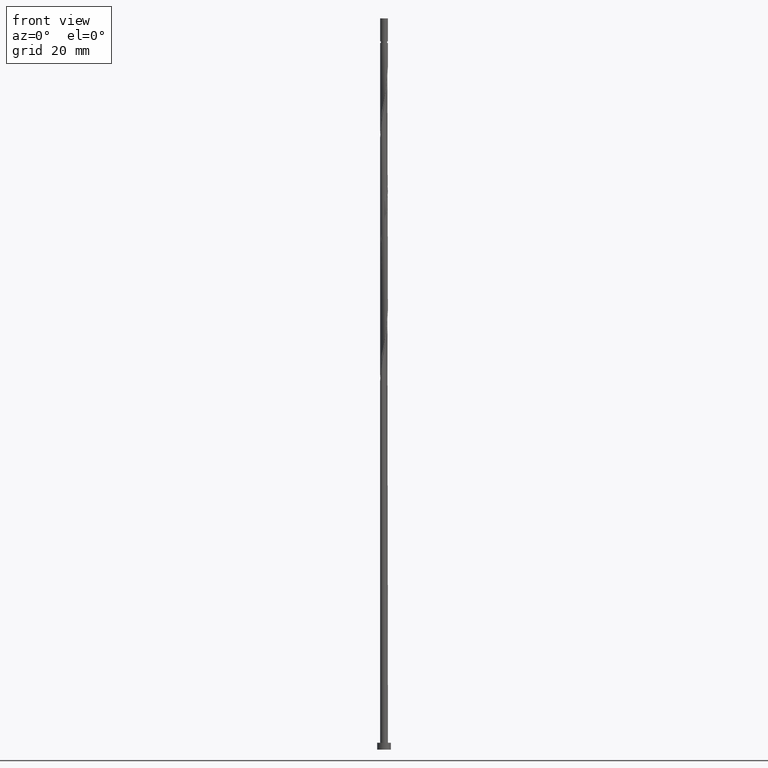
[diagram: clean part render]
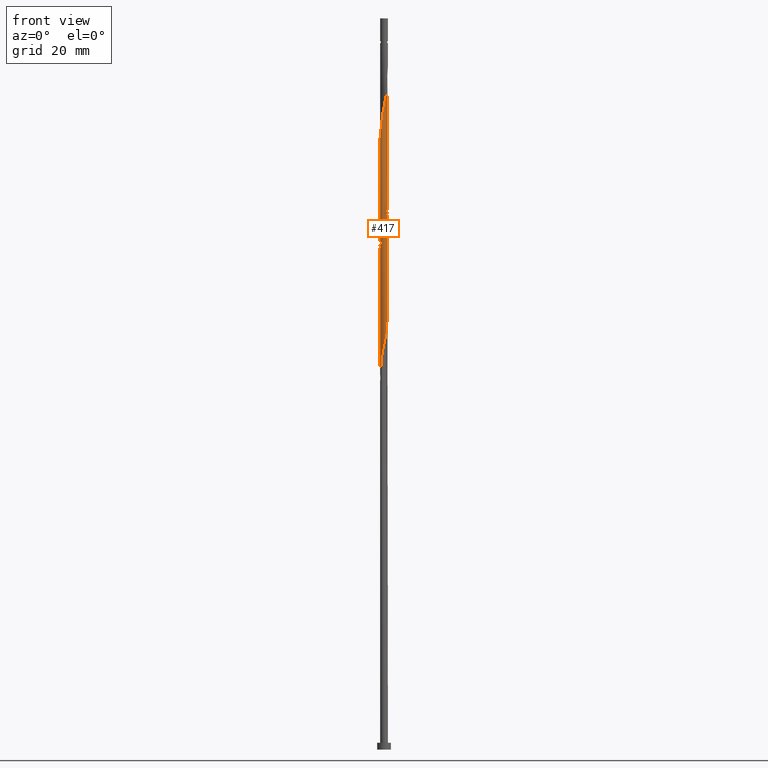
[diagram: same view with one face highlighted and labeled with its STEP entity id]
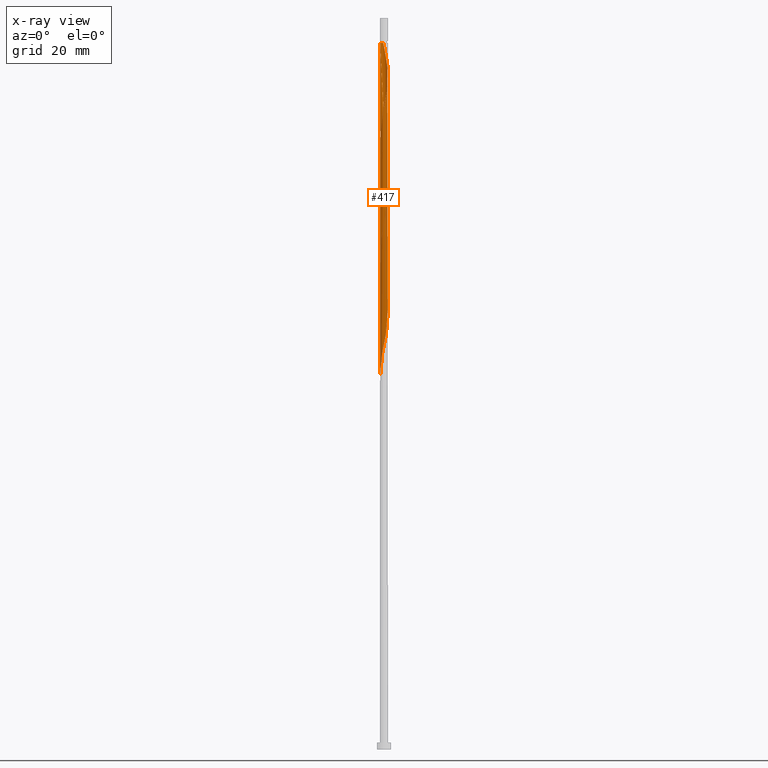
[diagram: x-ray of the same camera — body ghosted, the highlighted face saturated]
A machine part, front view. The second image highlights one B-rep face of the part: STEP entity #417.
The next image is the same camera in x-ray: the body ghosted, the highlighted face saturated — about 0% of this face is hidden behind the body in this view.
In plain terms, the highlighted cylindrical surface (bore or boss wall) has radius 0.85 mm, axis along (-0, -0, -1).
Its self-contained STEP definition (entity closure, byte-faithful):
#3 = CARTESIAN_POINT ( 'NONE',  ( 0.1691478643081263666, 0.8330000000000010729, 127.9603585369482630 ) ) ;
#10 = CARTESIAN_POINT ( 'NONE',  ( 0.8003589323882167594, 0.3112253882226055923, 123.7179342945240705 ) ) ;
#16 = CARTESIAN_POINT ( 'NONE',  ( -0.8500000000000013101, 3.365284658286592439E-17, 133.7775707243141312 ) ) ;
#28 = CARTESIAN_POINT ( 'NONE',  ( 0.7593320925608859628, 0.4010616363291610864, 149.1724797490694812 ) ) ;
#36 = EDGE_CURVE ( 'NONE', #1269, #800, #253, .T. ) ;
#47 = CIRCLE ( 'NONE', #708, 0.8499999999999930944 ) ;
#61 = CARTESIAN_POINT ( 'NONE',  ( -0.1691478643081262279, -0.8330000000000010729, 114.6270252036149344 ) ) ;
#69 = CARTESIAN_POINT ( 'NONE',  ( -0.8556210963740160658, -0.07313140479742533118, 109.1724797490695238 ) ) ;
#77 = CARTESIAN_POINT ( 'NONE',  ( 0.1941546104970447717, -0.8365044232702290028, 116.4452070217968327 ) ) ;
#85 = CARTESIAN_POINT ( 'NONE',  ( -0.5926500393605736994, -0.6093159532179605042, 85.53611611270586934 ) ) ;
#93 = CARTESIAN_POINT ( 'NONE',  ( 0.8556210963740160658, 0.07313140479742503974, 95.83914641573618098 ) ) ;
#97 = CARTESIAN_POINT ( 'NONE',  ( -0.6874568898795132554, -0.4999030151511280606, 136.4452070217967901 ) ) ;
#100 = CARTESIAN_POINT ( 'NONE',  ( -0.5050436311029743441, -0.6945261648132780019, 86.14217671876649263 ) ) ;
#107 = CARTESIAN_POINT ( 'NONE',  ( 0.5187711008710005345, -0.6733324178302211305, 91.59672217331194588 ) ) ;
#111 = CARTESIAN_POINT ( 'NONE',  ( 0.5050436311029744552, -0.6945261648132778909, 143.1118736884634757 ) ) ;
#115 = CARTESIAN_POINT ( 'NONE',  ( -0.8003589323882166484, -0.3112253882226059254, 83.71793429452408475 ) ) ;
#132 =( BOUNDED_CURVE ( )  B_SPLINE_CURVE ( 2, ( #1271, #1254, #802, #195, #427, #177, #774, #1237, #1010, #1150, #1366, #77, #187, #297, #61, #555, #1501, #561, #907, #547, #1494, #305, #169, #69, #1026, #915, #435, #1385, #313, #1034, #443, #322, #810, #203, #1307, #1516, #584, #1171, #465, #1063, #1041, #1164, #839, #687, #1509, #93, #1300, #933, #720, #1292, #1407, #457, #107, #1069, #235, #1056, #338, #1531, #941, #824, #449, #100, #85, #1184, #928, #115, #704, #817, #344 ),
 .UNSPECIFIED., .F., .T. ) 
 B_SPLINE_CURVE_WITH_KNOTS ( ( 3, 2, 2, 2, 2, 2, 2, 2, 2, 2, 2, 2, 2, 2, 2, 2, 2, 2, 2, 2, 2, 2, 2, 2, 2, 2, 2, 2, 2, 2, 2, 2, 2, 2, 3 ),
 ( 0.5545252162417509956, 0.5568181818181817677, 0.5681818181818182323, 0.5795454545454545858, 0.5909090909090909394, 0.6022727272727272929, 0.6136363636363636465, 0.6250000000000000000, 0.6363636363636363535, 0.6477272727272727071, 0.6590909090909090606, 0.6704545454545454142, 0.6818181818181817677, 0.6931818181818182323, 0.7045454545454545858, 0.7159090909090909394, 0.7272727272727272929, 0.7386363636363636465, 0.7500000000000000000, 0.7613636363636363535, 0.7727272727272727071, 0.7840909090909090606, 0.7954545454545454142, 0.8068181818181817677, 0.8181818181818182323, 0.8295454545454545858, 0.8409090909090909394, 0.8522727272727272929, 0.8636363636363636465, 0.8750000000000000000, 0.8863636363636363535, 0.8977272727272727071, 0.9090909090909090606, 0.9204545454545454142, 0.9295252162417513286 ),
 .UNSPECIFIED. ) 
 CURVE ( )  GEOMETRIC_REPRESENTATION_ITEM ( )  RATIONAL_B_SPLINE_CURVE ( ( 0.9061101570135867700, 0.9072237824201689893, 0.9090909090909468082, 0.8998376744372487135, 0.9090909090909468082, 0.8998376744372487135, 0.9090909090909468082, 0.8998376744372487135, 0.9090909090909468082, 0.8998376744372487135, 0.9090909090909468082, 0.8998376744372487135, 0.9090909090909468082, 0.8998376744372487135, 0.9090909090909468082, 0.8998376744372487135, 0.9090909090909468082, 0.8998376744372487135, 0.9090909090909468082, 0.8998376744372487135, 0.9090909090909468082, 0.8998376744372487135, 0.9090909090909468082, 0.8998376744372487135, 0.9090909090909468082, 0.8998376744372487135, 0.9090909090909468082, 0.8998376744372487135, 0.9090909090909468082, 0.8998376744372487135, 0.9090909090909468082, 0.8998376744372487135, 0.9090909090909468082, 0.8998376744372487135, 0.9090909090909468082, 0.8998376744372487135, 0.9090909090909468082, 0.8998376744372487135, 0.9090909090909468082, 0.8998376744372487135, 0.9090909090909468082, 0.8998376744372487135, 0.9090909090909468082, 0.8998376744372487135, 0.9090909090909468082, 0.8998376744372487135, 0.9090909090909468082, 0.8998376744372487135, 0.9090909090909468082, 0.8998376744372487135, 0.9090909090909468082, 0.8998376744372487135, 0.9090909090909468082, 0.8998376744372487135, 0.9090909090909468082, 0.8998376744372487135, 0.9090909090909468082, 0.8998376744372487135, 0.9090909090909468082, 0.8998376744372487135, 0.9090909090909468082, 0.8998376744372487135, 0.9090909090909468082, 0.8998376744372487135, 0.9090909090909468082, 0.8998376744372487135, 0.9090909090909468082, 0.9017048011080261993, 0.9061101570135871031 ) ) 
 REPRESENTATION_ITEM ( '' )  );
#135 = VERTEX_POINT ( 'NONE', #648 ) ;
#148 = CARTESIAN_POINT ( 'NONE',  ( 0.8415659277061851018, 0.1708872501152315648, 147.9603585369482914 ) ) ;
#149 = CARTESIAN_POINT ( 'NONE',  ( 0.000000000000000000, 0.000000000000000000, 154.6270252036149486 ) ) ;
#155 = CARTESIAN_POINT ( 'NONE',  ( -0.04938054541031315636, 0.8573197913631166456, 154.0209645975543538 ) ) ;
#169 = CARTESIAN_POINT ( 'NONE',  ( -0.8279900143811161906, -0.1921783965100154756, 109.7785403551301044 ) ) ;
#172 =( BOUNDED_CURVE ( )  B_SPLINE_CURVE ( 2, ( #245, #461, #848, #701, #731, #1168, #97, #1288, #1520, #709, #469, #945, #1417, #348, #835, #231, #1181, #111, #387, #505, #868, #265, #751, #1214, #759, #148, #630, #28, #394, #988, #282, #1081, #1349, #273, #521, #155, #638 ),
 .UNSPECIFIED., .F., .T. ) 
 B_SPLINE_CURVE_WITH_KNOTS ( ( 3, 2, 2, 2, 2, 2, 2, 2, 2, 2, 2, 2, 2, 2, 2, 2, 2, 2, 3 ),
 ( 0.5545252162417516617, 0.5568181818181818787, 0.5681818181818181213, 0.5795454545454545858, 0.5909090909090908283, 0.6022727272727272929, 0.6136363636363636465, 0.6250000000000000000, 0.6363636363636363535, 0.6477272727272727071, 0.6590909090909091717, 0.6704545454545454142, 0.6818181818181818787, 0.6931818181818181213, 0.7045454545454545858, 0.7159090909090908283, 0.7272727272727272929, 0.7386363636363636465, 0.7500000000000000000 ),
 .UNSPECIFIED. ) 
 CURVE ( )  GEOMETRIC_REPRESENTATION_ITEM ( )  RATIONAL_B_SPLINE_CURVE ( ( 0.9061101570135877692, 0.9072237824201698775, 0.9090909090909472523, 0.8998376744372493796, 0.9090909090909472523, 0.8998376744372493796, 0.9090909090909472523, 0.8998376744372493796, 0.9090909090909472523, 0.8998376744372493796, 0.9090909090909472523, 0.8998376744372493796, 0.9090909090909472523, 0.8998376744372493796, 0.9090909090909472523, 0.8998376744372493796, 0.9090909090909472523, 0.8998376744372493796, 0.9090909090909472523, 0.8998376744372493796, 0.9090909090909472523, 0.8998376744372493796, 0.9090909090909472523, 0.8998376744372493796, 0.9090909090909472523, 0.8998376744372493796, 0.9090909090909472523, 0.8998376744372493796, 0.9090909090909472523, 0.8998376744372493796, 0.9090909090909472523, 0.8998376744372493796, 0.9090909090909472523, 0.8998376744372493796, 0.9090909090909472523, 0.8998376744372493796, 0.9090909090909472523 ) ) 
 REPRESENTATION_ITEM ( '' )  );
#177 = CARTESIAN_POINT ( 'NONE',  ( 0.7593320925608857408, -0.4010616363291613085, 120.0815706581604303 ) ) ;
#183 = EDGE_CURVE ( 'NONE', #769, #953, #47, .T. ) ;
#187 = CARTESIAN_POINT ( 'NONE',  ( 0.07238703254336542603, -0.8469121073166727687, 115.8391464157361384 ) ) ;
#195 = CARTESIAN_POINT ( 'NONE',  ( 0.8415659277061852128, -0.1708872501152318146, 121.2936918702816484 ) ) ;
#203 = CARTESIAN_POINT ( 'NONE',  ( -0.1941546104970446607, 0.8365044232702291138, 103.1118736884634615 ) ) ;
#227 = CARTESIAN_POINT ( 'NONE',  ( -0.8485935120401004728, 0.04887792265890329030, 135.2330858096755719 ) ) ;
#231 = CARTESIAN_POINT ( 'NONE',  ( 0.2889151832059390079, -0.8086802086368855003, 141.8997524763422291 ) ) ;
#235 = CARTESIAN_POINT ( 'NONE',  ( 0.3080575625204527990, -0.7922124324787884753, 90.38460096119071352 ) ) ;
#245 = CARTESIAN_POINT ( 'NONE',  ( -0.8500000000000013101, 3.365284658286592439E-17, 133.7775707243141312 ) ) ;
#253 = LINE ( 'NONE', #876, #733 ) ;
#255 = CARTESIAN_POINT ( 'NONE',  ( 0.04938054541031328820, 0.8573197913631166456, 128.5664191430088863 ) ) ;
#265 = CARTESIAN_POINT ( 'NONE',  ( 0.8003589323882167594, -0.3112253882226057033, 145.5361161127058836 ) ) ;
#273 = CARTESIAN_POINT ( 'NONE',  ( 0.1941546104970447439, 0.8365044232702290028, 152.8088433854331640 ) ) ;
#282 = CARTESIAN_POINT ( 'NONE',  ( 0.5187711008710006455, 0.6733324178302214635, 150.9906615672513794 ) ) ;
#297 = CARTESIAN_POINT ( 'NONE',  ( -0.04938054541031349637, -0.8573197913631167566, 115.2330858096755577 ) ) ;
#305 = CARTESIAN_POINT ( 'NONE',  ( -0.8003589323882166484, -0.3112253882226059254, 110.3846009611907277 ) ) ;
#313 = CARTESIAN_POINT ( 'NONE',  ( -0.6874568898795127003, 0.4999030151511278386, 106.1421767187664784 ) ) ;
#322 = CARTESIAN_POINT ( 'NONE',  ( -0.4219605145438612426, 0.7479204416873482808, 104.3239949005846512 ) ) ;
#331 = CARTESIAN_POINT ( 'NONE',  ( -0.5187711008710005345, 0.6733324178302210195, 131.5967221733119459 ) ) ;
#338 = CARTESIAN_POINT ( 'NONE',  ( 0.07238703254336542603, -0.8469121073166727687, 89.17247974906948116 ) ) ;
#344 = CARTESIAN_POINT ( 'NONE',  ( -0.8500000000000011990, -1.099326321706954315E-15, 82.14314634958255112 ) ) ;
#348 = CARTESIAN_POINT ( 'NONE',  ( 0.04938054541031326045, -0.8573197913631166456, 140.6876312642210678 ) ) ;
#349 = ORIENTED_EDGE ( 'NONE', *, *, #485, .F. ) ;
#359 = CARTESIAN_POINT ( 'NONE',  ( -0.7593320925608857408, 0.4010616363291613085, 133.4149039914937589 ) ) ;
#387 = CARTESIAN_POINT ( 'NONE',  ( 0.5926500393605740324, -0.6093159532179610594, 143.7179342945241274 ) ) ;
#388 = DIRECTION ( 'NONE',  ( -0.000000000000000000, -0.000000000000000000, -1.000000000000000000 ) ) ;
#394 = CARTESIAN_POINT ( 'NONE',  ( 0.6874568898795134775, 0.4999030151511276165, 149.7785403551301044 ) ) ;
#398 = CARTESIAN_POINT ( 'NONE',  ( 0.8500000000000010880, 9.235836784408764133E-16, 122.1431463495825227 ) ) ;
#409 = CARTESIAN_POINT ( 'NONE',  ( -0.8500000000000011990, -1.099326321706954315E-15, 82.14314634958253691 ) ) ;
#417 = ADVANCED_FACE ( 'NONE', ( #571 ), #1388, .T. ) ;
#427 = CARTESIAN_POINT ( 'NONE',  ( 0.8004490101335350882, -0.2859744432221964505, 120.6876312642209967 ) ) ;
#435 = CARTESIAN_POINT ( 'NONE',  ( -0.8004490101335350882, 0.2859744432221963395, 107.3542979308876824 ) ) ;
#443 = CARTESIAN_POINT ( 'NONE',  ( -0.5187711008710005345, 0.6733324178302210195, 104.9300555066452461 ) ) ;
#449 = CARTESIAN_POINT ( 'NONE',  ( -0.3969794071544566760, -0.7516031867250815290, 86.74823732482708749 ) ) ;
#457 = CARTESIAN_POINT ( 'NONE',  ( 0.6155816871981407701, -0.5987443939730943132, 92.20278277937256917 ) ) ;
#461 = CARTESIAN_POINT ( 'NONE',  ( -0.8500000000000011990, -0.02445919754525255341, 133.8996687290323564 ) ) ;
#465 = CARTESIAN_POINT ( 'NONE',  ( 0.3969794071544567315, 0.7516031867250815290, 100.0815706581604303 ) ) ;
#469 = CARTESIAN_POINT ( 'NONE',  ( -0.3080575625204531320, -0.7922124324787885863, 138.8694494460392264 ) ) ;
#476 = ORIENTED_EDGE ( 'NONE', *, *, #183, .T. ) ;
#484 = ORIENTED_EDGE ( 'NONE', *, *, #788, .F. ) ;
#485 = EDGE_CURVE ( 'NONE', #769, #739, #557, .T. ) ;
#488 = CARTESIAN_POINT ( 'NONE',  ( 0.3969794071544567315, 0.7516031867250815290, 126.7482373248271017 ) ) ;
#505 = CARTESIAN_POINT ( 'NONE',  ( 0.6802564476181731656, -0.5241057416226437837, 144.3239949005846086 ) ) ;
#521 = CARTESIAN_POINT ( 'NONE',  ( 0.07238703254336580073, 0.8469121073166728797, 153.4149039914937305 ) ) ;
#531 = ORIENTED_EDGE ( 'NONE', *, *, #788, .T. ) ;
#547 = CARTESIAN_POINT ( 'NONE',  ( -0.6802564476181733877, -0.5241057416226436727, 111.5967221733119459 ) ) ;
#555 = CARTESIAN_POINT ( 'NONE',  ( -0.2889151832059391745, -0.8086802086368853892, 114.0209645975543538 ) ) ;
#557 = LINE ( 'NONE', #1012, #681 ) ;
#561 = CARTESIAN_POINT ( 'NONE',  ( -0.5050436311029743441, -0.6945261648132780019, 112.8088433854331782 ) ) ;
#571 = FACE_OUTER_BOUND ( 'NONE', #732, .T. ) ;
#576 = CARTESIAN_POINT ( 'NONE',  ( -0.4219605145438612426, 0.7479204416873482808, 130.9906615672513510 ) ) ;
#584 = CARTESIAN_POINT ( 'NONE',  ( 0.1691478643081263666, 0.8330000000000010729, 101.2936918702816484 ) ) ;
#612 = CARTESIAN_POINT ( 'NONE',  ( 0.5926500393605732553, 0.6093159532179607263, 125.5361161127058409 ) ) ;
#630 = CARTESIAN_POINT ( 'NONE',  ( 0.8004490101335355323, 0.2859744432221963395, 148.5664191430088863 ) ) ;
#638 = CARTESIAN_POINT ( 'NONE',  ( -0.1691478643081490429, 0.8330000000002302230, 154.6270252036150055 ) ) ;
#648 = CARTESIAN_POINT ( 'NONE',  ( 0.8500000000000011990, 9.235836784408764133E-16, 122.1431463495825369 ) ) ;
#681 = VECTOR ( 'NONE', #1036, 1000.000000000000000 ) ;
#687 = CARTESIAN_POINT ( 'NONE',  ( 0.8003589323882167594, 0.3112253882226055923, 97.05126762785738492 ) ) ;
#690 = DIRECTION ( 'NONE',  ( -0.000000000000000000, -0.000000000000000000, -1.000000000000000000 ) ) ;
#695 = VERTEX_POINT ( 'NONE', #1212 ) ;
#701 = CARTESIAN_POINT ( 'NONE',  ( -0.8415659277061851018, -0.1708872501152316203, 134.6270252036149770 ) ) ;
#704 = CARTESIAN_POINT ( 'NONE',  ( -0.8279900143811161906, -0.1921783965100154756, 83.11187368846346146 ) ) ;
#708 = AXIS2_PLACEMENT_3D ( 'NONE', #149, #388, #1201 ) ;
#709 = CARTESIAN_POINT ( 'NONE',  ( -0.4219605145438614646, -0.7479204416873481698, 138.2633888399786315 ) ) ;
#713 = CARTESIAN_POINT ( 'NONE',  ( -0.8415659277061852128, 0.1708872501152317036, 134.6270252036150055 ) ) ;
#720 = CARTESIAN_POINT ( 'NONE',  ( 0.8004490101335350882, -0.2859744432221964505, 94.02096459755433955 ) ) ;
#731 = CARTESIAN_POINT ( 'NONE',  ( -0.8004490101335355323, -0.2859744432221965060, 135.2330858096756288 ) ) ;
#732 = EDGE_LOOP ( 'NONE', ( #349, #476, #1439, #1023, #1231, #484, #531, #1060 ) ) ;
#733 = VECTOR ( 'NONE', #745, 1000.000000000000000 ) ;
#739 = VERTEX_POINT ( 'NONE', #1322 ) ;
#745 = DIRECTION ( 'NONE',  ( -0.000000000000000000, -0.000000000000000000, -1.000000000000000000 ) ) ;
#751 = CARTESIAN_POINT ( 'NONE',  ( 0.8279900143811165236, -0.1921783965100156977, 146.1421767187665353 ) ) ;
#759 = CARTESIAN_POINT ( 'NONE',  ( 0.8485935120401006948, 0.04887792265890309601, 147.3542979308876681 ) ) ;
#769 = VERTEX_POINT ( 'NONE', #1392 ) ;
#774 = CARTESIAN_POINT ( 'NONE',  ( 0.6874568898795130334, -0.4999030151511278386, 119.4755100520998070 ) ) ;
#788 = EDGE_CURVE ( 'NONE', #695, #135, #897, .T. ) ;
#800 = VERTEX_POINT ( 'NONE', #409 ) ;
#802 = CARTESIAN_POINT ( 'NONE',  ( 0.8485935120401003617, -0.04887792265890340826, 121.8997524763422291 ) ) ;
#810 = CARTESIAN_POINT ( 'NONE',  ( -0.3080575625204527990, 0.7922124324787884753, 103.7179342945240421 ) ) ;
#812 = CARTESIAN_POINT ( 'NONE',  ( 0.000000000000000000, 0.000000000000000000, 160.0000000000000000 ) ) ;
#817 = CARTESIAN_POINT ( 'NONE',  ( -0.8500000000000015321, -0.09734958827735366860, 82.62910630255382216 ) ) ;
#824 = CARTESIAN_POINT ( 'NONE',  ( -0.2889151832059391745, -0.8086802086368853892, 87.35429793088769657 ) ) ;
#831 = CARTESIAN_POINT ( 'NONE',  ( -0.8500000000000011990, 8.600171904510186088E-17, 135.4764796829158513 ) ) ;
#835 = CARTESIAN_POINT ( 'NONE',  ( 0.1691478643081261446, -0.8330000000000011839, 141.2936918702816911 ) ) ;
#839 = CARTESIAN_POINT ( 'NONE',  ( 0.7403076900031947405, 0.4176655649226249101, 97.65732823391797979 ) ) ;
#844 = CARTESIAN_POINT ( 'NONE',  ( -0.6874568898795127003, 0.4999030151511278386, 132.8088433854331072 ) ) ;
#848 = CARTESIAN_POINT ( 'NONE',  ( -0.8485935120401006948, -0.04887792265890319315, 134.0209645975544106 ) ) ;
#868 = CARTESIAN_POINT ( 'NONE',  ( 0.7403076900031950736, -0.4176655649226251321, 144.9300555066452887 ) ) ;
#876 = CARTESIAN_POINT ( 'NONE',  ( -0.8499999999999999778, 0.000000000000000000, 160.0000000000000000 ) ) ;
#880 = CARTESIAN_POINT ( 'NONE',  ( 0.5050436311029743441, 0.6945261648132778909, 126.1421767187664784 ) ) ;
#897 = LINE ( 'NONE', #1263, #1252 ) ;
#907 = CARTESIAN_POINT ( 'NONE',  ( -0.5926500393605736994, -0.6093159532179605042, 112.2027827793725407 ) ) ;
#909 = EDGE_CURVE ( 'NONE', #135, #800, #132, .T. ) ;
#915 = CARTESIAN_POINT ( 'NONE',  ( -0.8415659277061852128, 0.1708872501152317036, 107.9603585369483199 ) ) ;
#928 = CARTESIAN_POINT ( 'NONE',  ( -0.7403076900031947405, -0.4176655649226247435, 84.32399490058466540 ) ) ;
#933 = CARTESIAN_POINT ( 'NONE',  ( 0.8415659277061852128, -0.1708872501152318146, 94.62702520361500547 ) ) ;
#941 = CARTESIAN_POINT ( 'NONE',  ( -0.1691478643081262279, -0.8330000000000010729, 87.96035853694827722 ) ) ;
#945 = CARTESIAN_POINT ( 'NONE',  ( -0.1941546104970446607, -0.8365044232702291138, 139.4755100520997928 ) ) ;
#953 = VERTEX_POINT ( 'NONE', #1540 ) ;
#969 = CARTESIAN_POINT ( 'NONE',  ( 0.8279900143811161906, 0.1921783965100152258, 123.1118736884634188 ) ) ;
#983 = CARTESIAN_POINT ( 'NONE',  ( -0.1941546104970446607, 0.8365044232702291138, 129.7785403551301329 ) ) ;
#988 = CARTESIAN_POINT ( 'NONE',  ( 0.6155816871981409921, 0.5987443939730942022, 150.3846009611907277 ) ) ;
#992 = CARTESIAN_POINT ( 'NONE',  ( 0.2889151832059392855, 0.8086802086368853892, 127.3542979308876824 ) ) ;
#1010 = CARTESIAN_POINT ( 'NONE',  ( 0.5187711008710005345, -0.6733324178302211305, 118.2633888399785889 ) ) ;
#1012 = CARTESIAN_POINT ( 'NONE',  ( -0.8499999999999999778, 0.000000000000000000, 160.0000000000000000 ) ) ;
#1023 = ORIENTED_EDGE ( 'NONE', *, *, #36, .T. ) ;
#1026 = CARTESIAN_POINT ( 'NONE',  ( -0.8485935120401004728, 0.04887792265890329030, 108.5664191430089147 ) ) ;
#1034 = CARTESIAN_POINT ( 'NONE',  ( -0.6155816871981405480, 0.5987443939730946463, 105.5361161127058978 ) ) ;
#1036 = DIRECTION ( 'NONE',  ( -0.000000000000000000, -0.000000000000000000, -1.000000000000000000 ) ) ;
#1041 = CARTESIAN_POINT ( 'NONE',  ( 0.5926500393605732553, 0.6093159532179607263, 98.86944944603919794 ) ) ;
#1047 = CARTESIAN_POINT ( 'NONE',  ( -0.3080575625204527990, 0.7922124324787884753, 130.3846009611907277 ) ) ;
#1055 = EDGE_CURVE ( 'NONE', #739, #135, #1083, .T. ) ;
#1056 = CARTESIAN_POINT ( 'NONE',  ( 0.1941546104970447717, -0.8365044232702290028, 89.77854035513011866 ) ) ;
#1060 = ORIENTED_EDGE ( 'NONE', *, *, #1055, .F. ) ;
#1063 = CARTESIAN_POINT ( 'NONE',  ( 0.5050436311029743441, 0.6945261648132778909, 99.47551005209982122 ) ) ;
#1069 = CARTESIAN_POINT ( 'NONE',  ( 0.4219605145438611871, -0.7479204416873482808, 90.99066156725132259 ) ) ;
#1081 = CARTESIAN_POINT ( 'NONE',  ( 0.4219605145438611316, 0.7479204416873481698, 151.5967221733119459 ) ) ;
#1083 =( BOUNDED_CURVE ( )  B_SPLINE_CURVE ( 2, ( #831, #1284, #227, #713, #1177, #359, #844, #1420, #331, #576, #1047, #983, #1440, #255, #3, #992, #488, #880, #612, #1098, #1219, #10, #969, #1091, #398 ),
 .UNSPECIFIED., .F., .T. ) 
 B_SPLINE_CURVE_WITH_KNOTS ( ( 3, 2, 2, 2, 2, 2, 2, 2, 2, 2, 2, 2, 3 ),
 ( 0.4295252162417514952, 0.4318181818181818232, 0.4431818181818181768, 0.4545454545454545303, 0.4659090909090908839, 0.4772727272727272929, 0.4886363636363636465, 0.5000000000000000000, 0.5113636363636363535, 0.5227272727272727071, 0.5340909090909090606, 0.5454545454545454142, 0.5545252162417509956 ),
 .UNSPECIFIED. ) 
 CURVE ( )  GEOMETRIC_REPRESENTATION_ITEM ( )  RATIONAL_B_SPLINE_CURVE ( ( 0.9061101570135872141, 0.9072237824201694334, 0.9090909090909468082, 0.8998376744372487135, 0.9090909090909468082, 0.8998376744372487135, 0.9090909090909468082, 0.8998376744372487135, 0.9090909090909468082, 0.8998376744372487135, 0.9090909090909468082, 0.8998376744372487135, 0.9090909090909468082, 0.8998376744372487135, 0.9090909090909468082, 0.8998376744372487135, 0.9090909090909468082, 0.8998376744372487135, 0.9090909090909468082, 0.8998376744372487135, 0.9090909090909468082, 0.8998376744372487135, 0.9090909090909468082, 0.9017048011080265324, 0.9061101570135867700 ) ) 
 REPRESENTATION_ITEM ( '' )  );
#1091 = CARTESIAN_POINT ( 'NONE',  ( 0.8500000000000006439, 0.09734958827735686049, 122.6291063025538506 ) ) ;
#1098 = CARTESIAN_POINT ( 'NONE',  ( 0.6802564476181729436, 0.5241057416226437837, 124.9300555066452745 ) ) ;
#1144 = DIRECTION ( 'NONE',  ( -1.000000000000000000, 0.000000000000000000, 0.000000000000000000 ) ) ;
#1150 = CARTESIAN_POINT ( 'NONE',  ( 0.4219605145438611871, -0.7479204416873482808, 117.6573282339180082 ) ) ;
#1164 = CARTESIAN_POINT ( 'NONE',  ( 0.6802564476181729436, 0.5241057416226437837, 98.26338883997861728 ) ) ;
#1168 = CARTESIAN_POINT ( 'NONE',  ( -0.7593320925608857408, -0.4010616363291613640, 135.8391464157361668 ) ) ;
#1171 = CARTESIAN_POINT ( 'NONE',  ( 0.2889151832059392855, 0.8086802086368853892, 100.6876312642210394 ) ) ;
#1177 = CARTESIAN_POINT ( 'NONE',  ( -0.8004490101335350882, 0.2859744432221963395, 134.0209645975543538 ) ) ;
#1181 = CARTESIAN_POINT ( 'NONE',  ( 0.3969794071544566205, -0.7516031867250818621, 142.5058130824029092 ) ) ;
#1184 = CARTESIAN_POINT ( 'NONE',  ( -0.6802564476181733877, -0.5241057416226436727, 84.93005550664526027 ) ) ;
#1201 = DIRECTION ( 'NONE',  ( -1.000000000000000000, 0.000000000000000000, 0.000000000000000000 ) ) ;
#1212 = CARTESIAN_POINT ( 'NONE',  ( 0.8499999999999999778, 1.040949779275250140E-16, 154.6270252036149770 ) ) ;
#1214 = CARTESIAN_POINT ( 'NONE',  ( 0.8556210963740159547, -0.07313140479742537281, 146.7482373248271017 ) ) ;
#1216 = AXIS2_PLACEMENT_3D ( 'NONE', #812, #690, #1144 ) ;
#1219 = CARTESIAN_POINT ( 'NONE',  ( 0.7403076900031947405, 0.4176655649226249101, 124.3239949005846654 ) ) ;
#1231 = ORIENTED_EDGE ( 'NONE', *, *, #909, .F. ) ;
#1237 = CARTESIAN_POINT ( 'NONE',  ( 0.6155816871981407701, -0.5987443939730943132, 118.8694494460392264 ) ) ;
#1252 = VECTOR ( 'NONE', #1470, 1000.000000000000000 ) ;
#1254 = CARTESIAN_POINT ( 'NONE',  ( 0.8500000000000011990, -0.02445919754524664841, 122.0210483448642975 ) ) ;
#1263 = CARTESIAN_POINT ( 'NONE',  ( 0.8499999999999999778, 1.040949779275250140E-16, 160.0000000000000000 ) ) ;
#1269 = VERTEX_POINT ( 'NONE', #16 ) ;
#1271 = CARTESIAN_POINT ( 'NONE',  ( 0.8500000000000010880, 9.235836784408764133E-16, 122.1431463495825227 ) ) ;
#1284 = CARTESIAN_POINT ( 'NONE',  ( -0.8500000000000011990, 0.02445919754525123502, 135.3543816781976261 ) ) ;
#1288 = CARTESIAN_POINT ( 'NONE',  ( -0.6155816871981406591, -0.5987443939730946463, 137.0512676278574133 ) ) ;
#1292 = CARTESIAN_POINT ( 'NONE',  ( 0.7593320925608857408, -0.4010616363291613085, 93.41490399149374468 ) ) ;
#1300 = CARTESIAN_POINT ( 'NONE',  ( 0.8485935120401003617, -0.04887792265890340826, 95.23308580967555770 ) ) ;
#1307 = CARTESIAN_POINT ( 'NONE',  ( -0.07238703254336566195, 0.8469121073166727687, 102.5058130824028382 ) ) ;
#1322 = CARTESIAN_POINT ( 'NONE',  ( -0.8500000000000011990, 8.600171904510184856E-17, 135.4764796829158513 ) ) ;
#1349 = CARTESIAN_POINT ( 'NONE',  ( 0.3080575625204527990, 0.7922124324787885863, 152.2027827793725976 ) ) ;
#1366 = CARTESIAN_POINT ( 'NONE',  ( 0.3080575625204527990, -0.7922124324787884753, 117.0512676278573849 ) ) ;
#1385 = CARTESIAN_POINT ( 'NONE',  ( -0.7593320925608857408, 0.4010616363291613085, 106.7482373248270875 ) ) ;
#1388 = CYLINDRICAL_SURFACE ( 'NONE', #1216, 0.8499999999999999778 ) ;
#1392 = CARTESIAN_POINT ( 'NONE',  ( -0.8499999999999930944, 0.000000000000000000, 154.6270252036149486 ) ) ;
#1407 = CARTESIAN_POINT ( 'NONE',  ( 0.6874568898795130334, -0.4999030151511278386, 92.80884338543313561 ) ) ;
#1417 = CARTESIAN_POINT ( 'NONE',  ( -0.07238703254336570359, -0.8469121073166728797, 140.0815706581604729 ) ) ;
#1420 = CARTESIAN_POINT ( 'NONE',  ( -0.6155816871981405480, 0.5987443939730946463, 132.2027827793725692 ) ) ;
#1439 = ORIENTED_EDGE ( 'NONE', *, *, #1533, .F. ) ;
#1440 = CARTESIAN_POINT ( 'NONE',  ( -0.07238703254336566195, 0.8469121073166727687, 129.1724797490695096 ) ) ;
#1470 = DIRECTION ( 'NONE',  ( -0.000000000000000000, -0.000000000000000000, -1.000000000000000000 ) ) ;
#1494 = CARTESIAN_POINT ( 'NONE',  ( -0.7403076900031947405, -0.4176655649226247435, 110.9906615672512942 ) ) ;
#1501 = CARTESIAN_POINT ( 'NONE',  ( -0.3969794071544566760, -0.7516031867250815290, 113.4149039914937305 ) ) ;
#1509 = CARTESIAN_POINT ( 'NONE',  ( 0.8279900143811161906, 0.1921783965100152258, 96.44520702179677585 ) ) ;
#1516 = CARTESIAN_POINT ( 'NONE',  ( 0.04938054541031328820, 0.8573197913631166456, 101.8997524763422433 ) ) ;
#1520 = CARTESIAN_POINT ( 'NONE',  ( -0.5187711008710009786, -0.6733324178302214635, 137.6573282339179798 ) ) ;
#1531 = CARTESIAN_POINT ( 'NONE',  ( -0.04938054541031349637, -0.8573197913631167566, 88.56641914300892893 ) ) ;
#1533 = EDGE_CURVE ( 'NONE', #1269, #953, #172, .T. ) ;
#1540 = CARTESIAN_POINT ( 'NONE',  ( -0.1691478643081490429, 0.8330000000002303340, 154.6270252036149770 ) ) ;